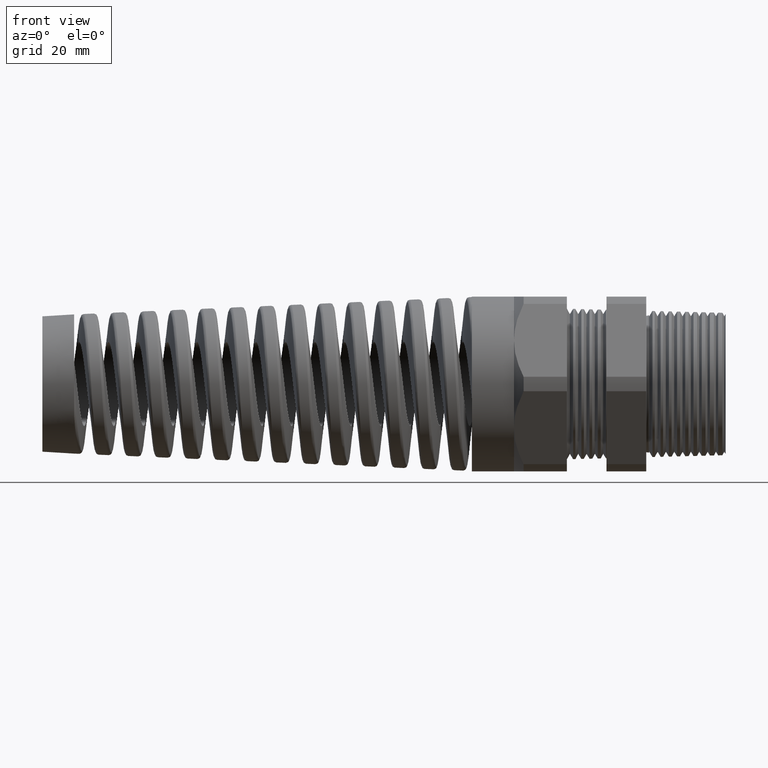
[diagram: clean part render]
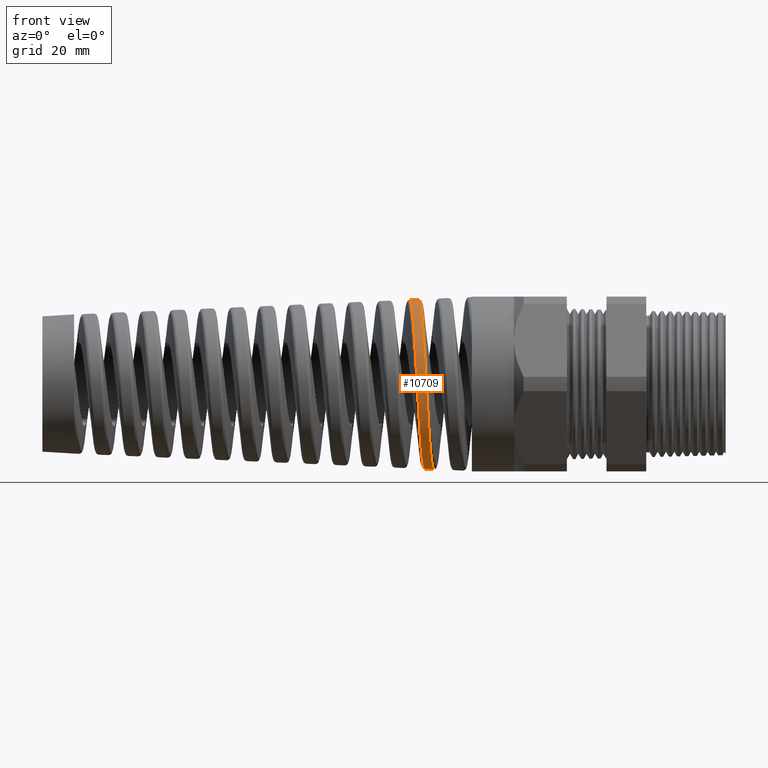
[diagram: same view with one face highlighted and labeled with its STEP entity id]
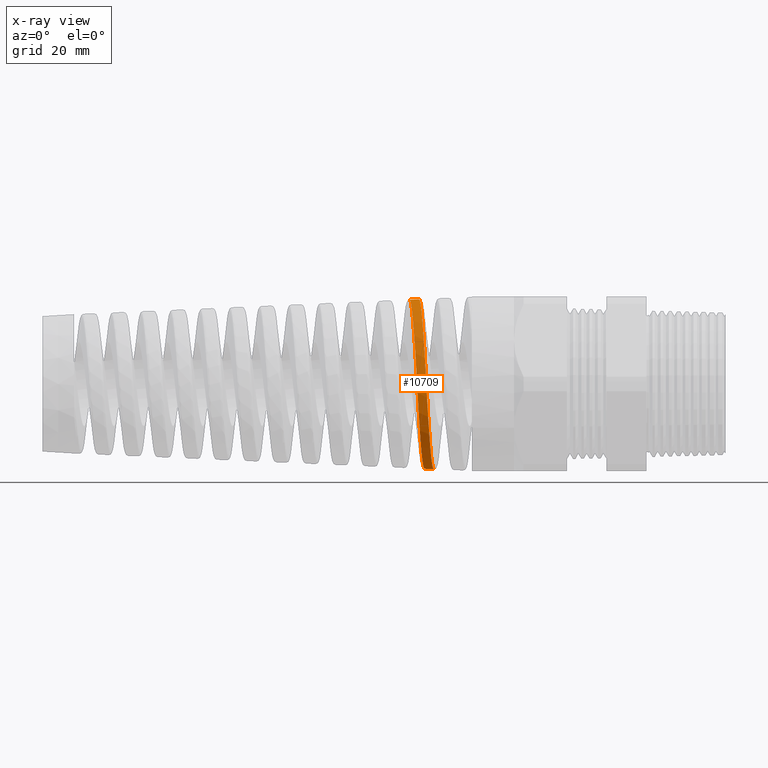
[diagram: x-ray of the same camera — body ghosted, the highlighted face saturated]
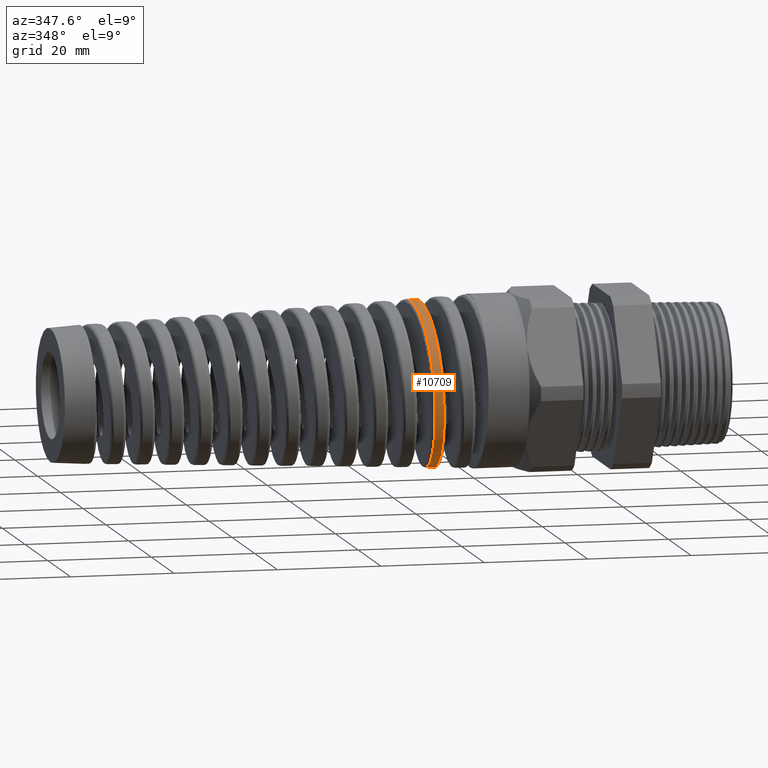
[diagram: same view with one face highlighted and labeled with its STEP entity id]
A machine part, front view. The second image highlights one B-rep face of the part: STEP entity #10709.
The next image is the same camera in x-ray: the body ghosted, the highlighted face saturated — about 0% of this face is hidden behind the body in this view.
A second angle (auxiliary view) of the same face is appended — the face is thin or edge-on in the first view.
In plain terms, the highlighted conical surface has half-angle 2.5 deg.
Its self-contained STEP definition (entity closure, byte-faithful):
#432 = CARTESIAN_POINT ( 'NONE',  ( -2.000412960044931400, -6.615946830994176100E-013, 0.6294613266080539800 ) ) ;
#433 = DIRECTION ( 'NONE',  ( 0.9990482215818576900, 5.341834311772755600E-018, 0.04361938736533626400 ) ) ;
#434 = VECTOR ( 'NONE', #433, 39.37007874015748100 ) ;
#435 = CARTESIAN_POINT ( 'NONE',  ( -1.530000000000000000, 7.960204194457796700E-017, 0.6500000000000000200 ) ) ;
#436 = LINE ( 'NONE', #435, #434 ) ;
#438 = CARTESIAN_POINT ( 'NONE',  ( -2.069110531029797300, 5.205023039102533700E-013, 0.6264619258833302700 ) ) ;
#1194 = CARTESIAN_POINT ( 'NONE',  ( -1.958930698565911200, 3.263363661915895500E-014, -0.6312724812582054500 ) ) ;
#4235 = FACE_OUTER_BOUND ( 'NONE', #10701, .T. ) ;
#4460 = DIRECTION ( 'NONE',  ( 0.0000000000000000000, 0.0000000000000000000, -1.000000000000000000 ) ) ;
#4461 = DIRECTION ( 'NONE',  ( 1.000000000000000000, 0.0000000000000000000, 0.0000000000000000000 ) ) ;
#4462 = CARTESIAN_POINT ( 'NONE',  ( -1.530000000000000000, 0.0000000000000000000, 0.0000000000000000000 ) ) ;
#4463 = AXIS2_PLACEMENT_3D ( 'NONE', #4462, #4461, #4460 ) ;
#4464 = CONICAL_SURFACE ( 'NONE', #4463, 0.6500000000000000200, 0.04363323129985850100 ) ;
#4527 = CARTESIAN_POINT ( 'NONE',  ( -2.000412960044931400, -6.615946830994176100E-013, 0.6294613266080539800 ) ) ;
#4528 = CARTESIAN_POINT ( 'NONE',  ( -1.999268675063964300, -0.02065652259152426700, 0.6295112871692576400 ) ) ;
#4529 = CARTESIAN_POINT ( 'NONE',  ( -1.998113291414236500, -0.04149651587308338800, 0.6285373479338382000 ) ) ;
#4530 = CARTESIAN_POINT ( 'NONE',  ( -1.995801896999808600, -0.08292891329180014600, 0.6245246447459688000 ) ) ;
#4531 = CARTESIAN_POINT ( 'NONE',  ( -1.994653186681766700, -0.1033904364770668600, 0.6215088124967374000 ) ) ;
#4532 = CARTESIAN_POINT ( 'NONE',  ( -1.991212006933459100, -0.1640329631988178800, 0.6095235286819624700 ) ) ;
#4533 = CARTESIAN_POINT ( 'NONE',  ( -1.988923575606369700, -0.2034789831397594300, 0.5976444355837389200 ) ) ;
#4534 = CARTESIAN_POINT ( 'NONE',  ( -1.985456729368641600, -0.2611322118110228600, 0.5738347710789929400 ) ) ;
#4535 = CARTESIAN_POINT ( 'NONE',  ( -1.984300103397299300, -0.2800285738400961600, 0.5649061208672456800 ) ) ;
#4536 = CARTESIAN_POINT ( 'NONE',  ( -1.982012604653114100, -0.3164916105027735200, 0.5454299887469154000 ) ) ;
#4537 = CARTESIAN_POINT ( 'NONE',  ( -1.979738800445771900, -0.3518296932921638500, 0.5242545539423066900 ) ) ;
#4538 = CARTESIAN_POINT ( 'NONE',  ( -1.977464177183806000, -0.3849470794729200600, 0.4997274420180043400 ) ) ;
#4539 = CARTESIAN_POINT ( 'NONE',  ( -1.975175851561884500, -0.4169365820120924900, 0.4734993628408308300 ) ) ;
#4540 = CARTESIAN_POINT ( 'NONE',  ( -1.974018328828202100, -0.4324480445773406500, 0.4594494796748986300 ) ) ;
#4541 = CARTESIAN_POINT ( 'NONE',  ( -1.970562705801831300, -0.4765000843960312000, 0.4153762777836574900 ) ) ;
#4542 = CARTESIAN_POINT ( 'NONE',  ( -1.968282250384786300, -0.5025975682310257500, 0.3835163656677346700 ) ) ;
#4543 = CARTESIAN_POINT ( 'NONE',  ( -1.964842432571741700, -0.5369495820401158900, 0.3320981115937237100 ) ) ;
#4544 = CARTESIAN_POINT ( 'NONE',  ( -1.963692950505793600, -0.5475955112490856800, 0.3143496200700959800 ) ) ;
#4545 = CARTESIAN_POINT ( 'NONE',  ( -1.961382306132937800, -0.5672254873911978200, 0.2775952340991634800 ) ) ;
#4546 = CARTESIAN_POINT ( 'NONE',  ( -1.960232707072493400, -0.5761070858546997200, 0.2587663578040126400 ) ) ;
#4547 = CARTESIAN_POINT ( 'NONE',  ( -1.956812093121555600, -0.5997616948651310900, 0.2015255576863862800 ) ) ;
#4548 = CARTESIAN_POINT ( 'NONE',  ( -1.954554879205583600, -0.6116981679514293900, 0.1621341146507760100 ) ) ;
#4549 = CARTESIAN_POINT ( 'NONE',  ( -1.951122530098115400, -0.6237991934219226900, 0.1011880733771210700 ) ) ;
#4550 = CARTESIAN_POINT ( 'NONE',  ( -1.949965005306072600, -0.6268620424695257000, 0.08045687783410587800 ) ) ;
#4551 = CARTESIAN_POINT ( 'NONE',  ( -1.947668160475260400, -0.6308890503866008100, 0.03917952530122389300 ) ) ;
#4552 = CARTESIAN_POINT ( 'NONE',  ( -1.946525113900117800, -0.6318765564042432300, 0.01856848894839067600 ) ) ;
#4553 = CARTESIAN_POINT ( 'NONE',  ( -1.943097258171826400, -0.6318292718442901600, -0.04318272984936324900 ) ) ;
#4554 = CARTESIAN_POINT ( 'NONE',  ( -1.940812169316794300, -0.6278117732445437400, -0.08425441063316162200 ) ) ;
#4555 = CARTESIAN_POINT ( 'NONE',  ( -1.936193576435597100, -0.6114787009438325000, -0.1661179737486539500 ) ) ;
#4603 = CARTESIAN_POINT ( 'NONE',  ( -1.933934088798026500, -0.5994327368128210500, -0.2055708955553050600 ) ) ;
#4604 = CARTESIAN_POINT ( 'NONE',  ( -1.930532539587387800, -0.5757840575525878800, -0.2626182729398036100 ) ) ;
#4605 = CARTESIAN_POINT ( 'NONE',  ( -1.929396857085705400, -0.5669643302360610800, -0.2812761167959496000 ) ) ;
#4606 = CARTESIAN_POINT ( 'NONE',  ( -1.927108681040691200, -0.5474091835888167400, -0.3178590759851137000 ) ) ;
#4607 = CARTESIAN_POINT ( 'NONE',  ( -1.925952824695106300, -0.5366309848862204100, -0.3358286741949034200 ) ) ;
#4608 = CARTESIAN_POINT ( 'NONE',  ( -1.922516979729550000, -0.5020940367721069600, -0.3874682124587848800 ) ) ;
#4609 = CARTESIAN_POINT ( 'NONE',  ( -1.920244108478110800, -0.4759753356223597200, -0.4192766156990422300 ) ) ;
#4610 = CARTESIAN_POINT ( 'NONE',  ( -1.916810786602164000, -0.4322011757776561000, -0.4630966925414849400 ) ) ;
#4611 = CARTESIAN_POINT ( 'NONE',  ( -1.915658852116072700, -0.4167843384684050700, -0.4770938988225211200 ) ) ;
#4612 = CARTESIAN_POINT ( 'NONE',  ( -1.913358829338531100, -0.3845872456114033900, -0.5035351024175847000 ) ) ;
#4613 = CARTESIAN_POINT ( 'NONE',  ( -1.912220415330555100, -0.3679627311871221900, -0.5158606808319184900 ) ) ;
#4614 = CARTESIAN_POINT ( 'NONE',  ( -1.908817921602662200, -0.3165620058332752100, -0.5502363706845319100 ) ) ;
#4615 = CARTESIAN_POINT ( 'NONE',  ( -1.906566369454056900, -0.2802729120319639700, -0.5697097795882663000 ) ) ;
#4616 = CARTESIAN_POINT ( 'NONE',  ( -1.903134291035407900, -0.2227421453688913900, -0.5936361617860721500 ) ) ;
#4617 = CARTESIAN_POINT ( 'NONE',  ( -1.901981352638069100, -0.2030436125259770500, -0.6007092059809670000 ) ) ;
#4618 = CARTESIAN_POINT ( 'NONE',  ( -1.899696551499126900, -0.1634698541198240400, -0.6127661207367319800 ) ) ;
#4619 = CARTESIAN_POINT ( 'NONE',  ( -1.897419998099795700, -0.1235059987309115700, -0.6228300228153593700 ) ) ;
#4620 = CARTESIAN_POINT ( 'NONE',  ( -1.895141353463005100, -0.08277529817678797000, -0.6289707997149686100 ) ) ;
#4621 = CARTESIAN_POINT ( 'NONE',  ( -1.892854580922800800, -0.04165669996375742600, -0.6331250730874717900 ) ) ;
#4622 = CARTESIAN_POINT ( 'NONE',  ( -1.891701683773618900, -0.02079971279656849000, -0.6342077634348474200 ) ) ;
#4623 = CARTESIAN_POINT ( 'NONE',  ( -1.890555728699595800, 1.426682361849745800E-015, -0.6342577969139099300 ) ) ;
#4624 = B_SPLINE_CURVE_WITH_KNOTS ( 'NONE', 3,
 ( #4623, #4622, #4621, #4620, #4619, #4618, #4617, #4616, #4615, #4614, #4613, #4612, #4611, #4610, #4609, #4608, #4607, #4606, #4605, #4604, #4603, #4555, #4554, #4553, #4552, #4551, #4550, #4549, #4548, #4547, #4546, #4545, #4544, #4543, #4542, #4541, #4540, #4539, #4538, #4537, #4536, #4535, #4534, #4533, #4532, #4531, #4530, #4529, #4528, #4527 ),
 .UNSPECIFIED., .F., .F.,
 ( 4, 2, 1, 2, 2, 2, 2, 2, 2, 2, 2, 2, 2, 2, 2, 2, 2, 2, 2, 2, 1, 2, 2, 2, 2, 4 ),
 ( 0.1333782927637320300, 0.1349706807157662900, 0.1365630686678005200, 0.1381554566198347800, 0.1397478445718690300, 0.1429326204759375200, 0.1445250084279717800, 0.1461173963800060100, 0.1493021722840745000, 0.1508945602361087500, 0.1524869481881429800, 0.1556717240922115000, 0.1588564999962799900, 0.1604488879483142400, 0.1620412759003484700, 0.1652260518044169600, 0.1668184397564512200, 0.1684108277084854800, 0.1715956036125539700, 0.1731879915645882000, 0.1747803795166224500, 0.1763727674686567100, 0.1779651554206909400, 0.1811499313247594300, 0.1827423192767936900, 0.1843347072288279200 ),
 .UNSPECIFIED. ) ;
#10701 = EDGE_LOOP ( 'NONE', ( #10702, #10786, #10743, #10744 ) ) ;
#10702 = ORIENTED_EDGE ( 'NONE', *, *, #11945, .F. ) ;
#10709 = ADVANCED_FACE ( 'NONE', ( #4235 ), #4464, .T. ) ;
#10743 = ORIENTED_EDGE ( 'NONE', *, *, #11839, .T. ) ;
#10744 = ORIENTED_EDGE ( 'NONE', *, *, #10745, .T. ) ;
#10745 = EDGE_CURVE ( 'NONE', #11837, #11946, #4624, .T. ) ;
#10786 = ORIENTED_EDGE ( 'NONE', *, *, #10787, .T. ) ;
#10787 = EDGE_CURVE ( 'NONE', #11943, #12040, #12621, .T. ) ;
#11837 = VERTEX_POINT ( 'NONE', #16954 ) ;
#11839 = EDGE_CURVE ( 'NONE', #12040, #11837, #16982, .T. ) ;
#11943 = VERTEX_POINT ( 'NONE', #438 ) ;
#11945 = EDGE_CURVE ( 'NONE', #11943, #11946, #436, .T. ) ;
#11946 = VERTEX_POINT ( 'NONE', #432 ) ;
#12040 = VERTEX_POINT ( 'NONE', #1194 ) ;
#12593 = CARTESIAN_POINT ( 'NONE',  ( -2.004750809816392200, -0.6077351140146737300, -0.1645142119648833300 ) ) ;
#12594 = CARTESIAN_POINT ( 'NONE',  ( -2.007025196508059200, -0.6177045627571387000, -0.1247240943228510000 ) ) ;
#12595 = CARTESIAN_POINT ( 'NONE',  ( -2.009301868193174900, -0.6237581595304165800, -0.08415729064733892800 ) ) ;
#12596 = CARTESIAN_POINT ( 'NONE',  ( -2.011592602547401600, -0.6278255040481894900, -0.04319726055375490400 ) ) ;
#12597 = CARTESIAN_POINT ( 'NONE',  ( -2.012751270878570400, -0.6288638844043773500, -0.02240829257502723000 ) ) ;
#12598 = CARTESIAN_POINT ( 'NONE',  ( -2.016217016166020700, -0.6288817787610128100, 0.03967444468488027400 ) ) ;
#12599 = CARTESIAN_POINT ( 'NONE',  ( -2.018503868536612800, -0.6248466378386966500, 0.08048402867125470400 ) ) ;
#12600 = CARTESIAN_POINT ( 'NONE',  ( -2.021949596791041700, -0.6128791770235511000, 0.1408494993630909600 ) ) ;
#12601 = CARTESIAN_POINT ( 'NONE',  ( -2.023100236183428700, -0.6078971808369945100, 0.1608288568125078000 ) ) ;
#12602 = CARTESIAN_POINT ( 'NONE',  ( -2.025412096484810100, -0.5958862322603122300, 0.2004934883644624300 ) ) ;
#12603 = CARTESIAN_POINT ( 'NONE',  ( -2.026566865879291200, -0.5888868870238729300, 0.2200463738172273300 ) ) ;
#12604 = CARTESIAN_POINT ( 'NONE',  ( -2.029999231315115600, -0.5652757219325570400, 0.2770412603802127600 ) ) ;
#12605 = CARTESIAN_POINT ( 'NONE',  ( -2.032265588777614000, -0.5459739875589136900, 0.3131825426881796900 ) ) ;
#12606 = CARTESIAN_POINT ( 'NONE',  ( -2.035712439806293400, -0.5116471722228922400, 0.3645893550114699400 ) ) ;
#12607 = CARTESIAN_POINT ( 'NONE',  ( -2.036875596136791700, -0.4992261457261839600, 0.3813398266785352800 ) ) ;
#12608 = CARTESIAN_POINT ( 'NONE',  ( -2.039187075928889900, -0.4729970276531625400, 0.4132721852677100300 ) ) ;
#12609 = CARTESIAN_POINT ( 'NONE',  ( -2.040337208739964000, -0.4591812147032940400, 0.4284889924852985900 ) ) ;
#12610 = CARTESIAN_POINT ( 'NONE',  ( -2.043785041981882200, -0.4156804638701272500, 0.4719440680702995400 ) ) ;
#12611 = CARTESIAN_POINT ( 'NONE',  ( -2.046079954125366500, -0.3839623237229067800, 0.4980085115932619300 ) ) ;
#12612 = CARTESIAN_POINT ( 'NONE',  ( -2.050718110655169300, -0.3148773917894015000, 0.5440934484020596400 ) ) ;
#12613 = CARTESIAN_POINT ( 'NONE',  ( -2.052997393807897800, -0.2785342371168237900, 0.5634132977116114200 ) ) ;
#12614 = CARTESIAN_POINT ( 'NONE',  ( -2.056423923929990400, -0.2217136022889117100, 0.5868660663867298900 ) ) ;
#12615 = CARTESIAN_POINT ( 'NONE',  ( -2.057568226468035700, -0.2023706370278711700, 0.5937660340004564700 ) ) ;
#12616 = CARTESIAN_POINT ( 'NONE',  ( -2.059874049162538700, -0.1628625355781662400, 0.6056909638474923300 ) ) ;
#12617 = CARTESIAN_POINT ( 'NONE',  ( -2.061040348768207400, -0.1426120603430554900, 0.6107237570056544000 ) ) ;
#12618 = CARTESIAN_POINT ( 'NONE',  ( -2.064509134330066300, -0.08188557199572398000, 0.6226582738036042800 ) ) ;
#12619 = CARTESIAN_POINT ( 'NONE',  ( -2.066803116654557300, -0.04109382389175141000, 0.6265626697706678800 ) ) ;
#12620 = CARTESIAN_POINT ( 'NONE',  ( -2.069110531029797300, 5.205023039102533700E-013, 0.6264619258833302700 ) ) ;
#12621 = B_SPLINE_CURVE_WITH_KNOTS ( 'NONE', 3,
 ( #12620, #12619, #12618, #12617, #12616, #12615, #12614, #12613, #12612, #12611, #12610, #12609, #12608, #12607, #12606, #12605, #12604, #12603, #12602, #12601, #12600, #12599, #12598, #12597, #12596, #12595, #12594, #12593, #12671, #12670, #12669, #12668, #12667, #12666, #12665, #12664, #12663, #12662, #12661, #12660, #12659, #12658, #12657, #12656, #12655, #12654, #12653 ),
 .UNSPECIFIED., .F., .F.,
 ( 4, 2, 2, 2, 2, 2, 2, 2, 2, 2, 2, 2, 2, 1, 2, 2, 2, 2, 2, 2, 2, 2, 2, 4 ),
 ( 1.045933138598380300, 1.049108973620192000, 1.050696891131097900, 1.052284808642003600, 1.055460643663815400, 1.058636478685627000, 1.060224396196532700, 1.061812313707438700, 1.064988148729250300, 1.066576066240156200, 1.068163983751061900, 1.071339818772873800, 1.072927736283779500, 1.074515653794685400, 1.076103571305591100, 1.077691488816497000, 1.080867323838308600, 1.082455241349214600, 1.084043158860120300, 1.087218993881931900, 1.088806911392837800, 1.090394828903743700, 1.093570663925555400, 1.096746498947367000 ),
 .UNSPECIFIED. ) ;
#12653 = CARTESIAN_POINT ( 'NONE',  ( -1.958930698565911200, 3.263363661915895500E-014, -0.6312724812582054500 ) ) ;
#12654 = CARTESIAN_POINT ( 'NONE',  ( -1.961198789523222800, -0.04097636029579674500, -0.6311734542684089800 ) ) ;
#12655 = CARTESIAN_POINT ( 'NONE',  ( -1.963469453227695700, -0.08195584778240508400, -0.6271054537417197800 ) ) ;
#12656 = CARTESIAN_POINT ( 'NONE',  ( -1.968086248576223200, -0.1633562801228158100, -0.6107686645396245300 ) ) ;
#12657 = CARTESIAN_POINT ( 'NONE',  ( -1.970366705580074900, -0.2026086189763280900, -0.5987526755416270300 ) ) ;
#12658 = CARTESIAN_POINT ( 'NONE',  ( -1.973798796351881700, -0.2593925235792199400, -0.5751707168041609900 ) ) ;
#12659 = CARTESIAN_POINT ( 'NONE',  ( -1.974944391652798200, -0.2779688656979832900, -0.5663769778908173100 ) ) ;
#12660 = CARTESIAN_POINT ( 'NONE',  ( -1.977244264166440500, -0.3144007408640908100, -0.5468776079463664200 ) ) ;
#12661 = CARTESIAN_POINT ( 'NONE',  ( -1.978400485899684900, -0.3322781286135675900, -0.5361420015431326300 ) ) ;
#12662 = CARTESIAN_POINT ( 'NONE',  ( -1.981829454871312000, -0.3836467946678191500, -0.5017540686698251900 ) ) ;
#12663 = CARTESIAN_POINT ( 'NONE',  ( -1.984087722302072100, -0.4153044620572147200, -0.4757443521122711200 ) ) ;
#12664 = CARTESIAN_POINT ( 'NONE',  ( -1.987514047835669900, -0.4589279099394579800, -0.4321328756890798200 ) ) ;
#12665 = CARTESIAN_POINT ( 'NONE',  ( -1.988667307965329200, -0.4728746718844631400, -0.4167571673759452600 ) ) ;
#12666 = CARTESIAN_POINT ( 'NONE',  ( -1.990976802450794100, -0.4991668299549578100, -0.3847108412708563100 ) ) ;
#12667 = CARTESIAN_POINT ( 'NONE',  ( -1.992124748351662200, -0.5114244672860924800, -0.3681618371446987400 ) ) ;
#12668 = CARTESIAN_POINT ( 'NONE',  ( -1.995563200947564100, -0.5456115453045831100, -0.3169852889465069600 ) ) ;
#12669 = CARTESIAN_POINT ( 'NONE',  ( -1.997849264186673900, -0.5649795630636107500, -0.2808427063811319000 ) ) ;
#12670 = CARTESIAN_POINT ( 'NONE',  ( -2.001307483199247500, -0.5887626953254785400, -0.2235148638383650200 ) ) ;
#12671 = CARTESIAN_POINT ( 'NONE',  ( -2.002463709344213200, -0.5957796912735008300, -0.2039096332951429400 ) ) ;
#16954 = CARTESIAN_POINT ( 'NONE',  ( -1.890555728699595800, 1.426682361849745800E-015, -0.6342577969139099300 ) ) ;
#16979 = DIRECTION ( 'NONE',  ( 0.9990482215818576900, 0.0000000000000000000, -0.04361938736533626400 ) ) ;
#16980 = VECTOR ( 'NONE', #16979, 39.37007874015748100 ) ;
#16981 = CARTESIAN_POINT ( 'NONE',  ( -1.530000000000000000, 0.0000000000000000000, -0.6500000000000000200 ) ) ;
#16982 = LINE ( 'NONE', #16981, #16980 ) ;